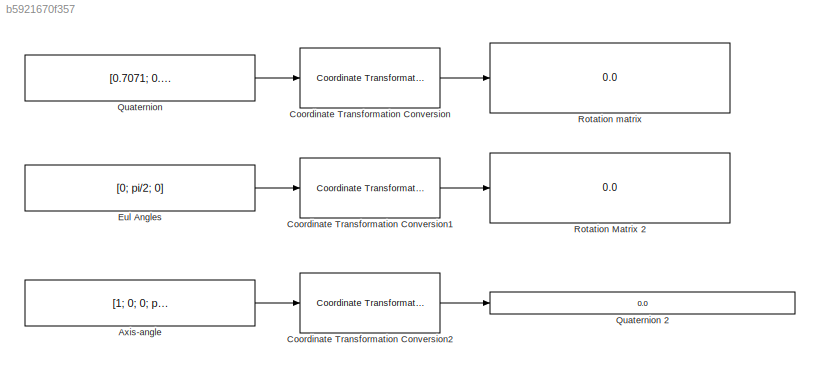
MODEL slx_b5921670f357
KIND model
CONFIG AbsTol = auto
CONFIG EnableMultiTasking = off
CONFIG FixedStep = auto
CONFIG MaxStep = auto
CONFIG MinStep = auto
CONFIG RelTol = 1e-3
CONFIG SampleTimeConstraint = Unconstrained
CONFIG SolverName = VariableStepAuto
CONFIG StartTime = 0.0
CONFIG StopTime = 10.0
BLOCK [Constant] Axis-angle
  Value = [1; 0; 0; pi/2]
BLOCK [Reference] Coordinate Transformation Conversion  REF=robotcorelib/Coordinate Transformation Conversion
  SourceBlock = robotcorelib/Coordinate Transformation Conversion
  SourceType = robotics.slcore.internal.block.CoordinateTransformationConversion
BLOCK [Reference] Coordinate Transformation Conversion1  REF=robotcorelib/Coordinate Transformation Conversion
  SourceBlock = robotcorelib/Coordinate Transformation Conversion
  SourceType = robotics.slcore.internal.block.CoordinateTransformationConversion
BLOCK [Reference] Coordinate Transformation Conversion2  REF=robotcorelib/Coordinate Transformation Conversion
  SourceBlock = robotcorelib/Coordinate Transformation Conversion
  SourceType = robotics.slcore.internal.block.CoordinateTransformationConversion
BLOCK [Constant] Eul Angles
  Value = [0; pi/2; 0]
BLOCK [Constant] Quaternion
  Value = [0.7071; 0.7071; 0; 0]
BLOCK [Display] Quaternion 2
  Decimation = 1
BLOCK [Display] Rotation Matrix 2
  Decimation = 1
BLOCK [Display] Rotation matrix
  Decimation = 1
LINE Axis-angle:1 -> Coordinate Transformation Conversion2:1
LINE Coordinate Transformation Conversion1:1 -> Rotation Matrix 2:1
LINE Coordinate Transformation Conversion2:1 -> Quaternion 2:1
LINE Coordinate Transformation Conversion:1 -> Rotation matrix:1
LINE Eul Angles:1 -> Coordinate Transformation Conversion1:1
LINE Quaternion:1 -> Coordinate Transformation Conversion:1
